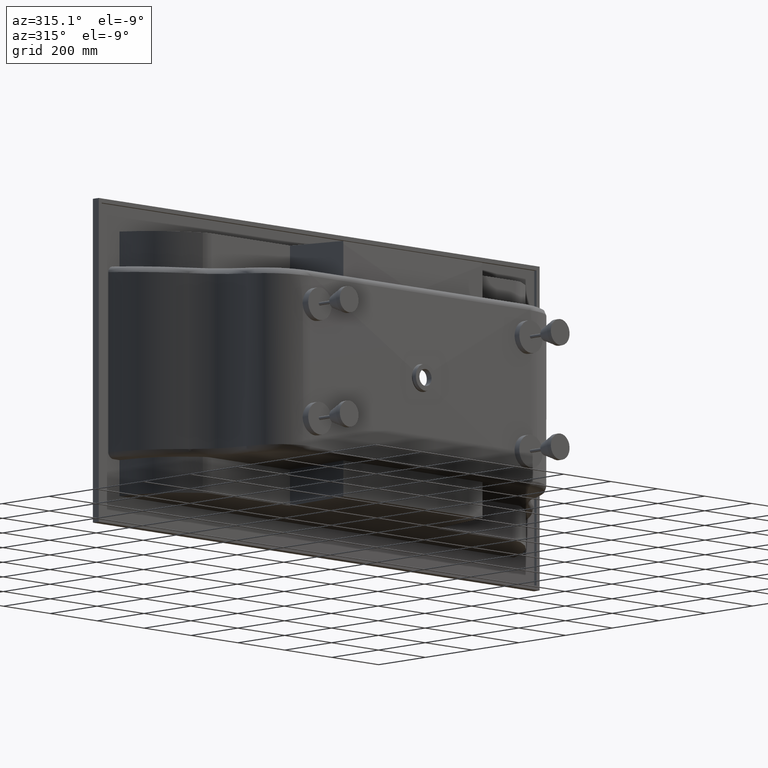
[diagram: clean part render]
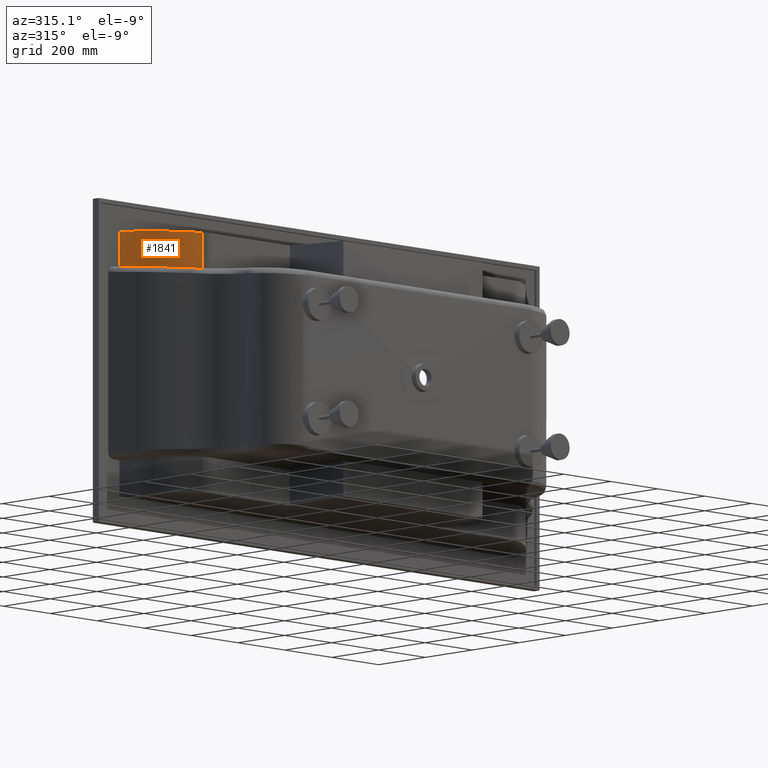
[diagram: same view with one face highlighted and labeled with its STEP entity id]
A machine part, auxiliary view. The second image highlights one B-rep face of the part: STEP entity #1841.
In plain terms, the highlighted cylindrical surface (partial cylindrical patch) has radius 335 mm, axis along (-0, -0, -1).
Its self-contained STEP definition (entity closure, byte-faithful):
#257 = CARTESIAN_POINT ( 'NONE',  ( 98.92710784676805200, 0.0000000000000000000, -200.4981991175117500 ) ) ;
#336 = CARTESIAN_POINT ( 'NONE',  ( 417.3701330040768200, 104.0146130534629900, -104.9999999999993200 ) ) ;
#1060 = EDGE_CURVE ( 'NONE', #6415, #8993, #8400, .T. ) ;
#1186 = FACE_OUTER_BOUND ( 'NONE', #2929, .T. ) ;
#1579 = ORIENTED_EDGE ( 'NONE', *, *, #5838, .F. ) ;
#1794 = AXIS2_PLACEMENT_3D ( 'NONE', #336, #4651, #4684 ) ;
#1841 = ADVANCED_FACE ( 'NONE', ( #1186 ), #4777, .T. ) ;
#2075 = DIRECTION ( 'NONE',  ( -0.0000000000000000000, -0.0000000000000000000, -1.000000000000000000 ) ) ;
#2929 = EDGE_LOOP ( 'NONE', ( #1579, #6397, #7920, #5440 ) ) ;
#3269 = CARTESIAN_POINT ( 'NONE',  ( 261.5496198996332900, -192.5405549943522500, -207.0029475970506800 ) ) ;
#3309 = EDGE_CURVE ( 'NONE', #5510, #8993, #5917, .T. ) ;
#3357 = EDGE_CURVE ( 'NONE', #7368, #6415, #5702, .T. ) ;
#4049 = CARTESIAN_POINT ( 'NONE',  ( 183.3525337181209000, -151.4530562591724300, -95.61485642356488800 ) ) ;
#4208 = CARTESIAN_POINT ( 'NONE',  ( 98.92710784676805200, 0.0000000000000000000, -90.49819911751174600 ) ) ;
#4583 = CARTESIAN_POINT ( 'NONE',  ( 126.3541788859307800, -83.96858111106169500, -203.3349755063989600 ) ) ;
#4651 = DIRECTION ( 'NONE',  ( -0.0000000000000000000, -0.0000000000000000000, -1.000000000000000000 ) ) ;
#4684 = DIRECTION ( 'NONE',  ( -1.000000000000000000, 0.0000000000000000000, 0.0000000000000000000 ) ) ;
#4777 = CYLINDRICAL_SURFACE ( 'NONE', #1794, 335.0000000000000000 ) ;
#5153 = CARTESIAN_POINT ( 'NONE',  ( 98.92710784676805200, 0.0000000000000000000, -200.4981991175117500 ) ) ;
#5440 = ORIENTED_EDGE ( 'NONE', *, *, #3357, .F. ) ;
#5510 = VERTEX_POINT ( 'NONE', #4208 ) ;
#5702 = LINE ( 'NONE', #7689, #7367 ) ;
#5838 = EDGE_CURVE ( 'NONE', #5510, #7368, #6885, .T. ) ;
#5917 = LINE ( 'NONE', #6954, #6146 ) ;
#6089 = CARTESIAN_POINT ( 'NONE',  ( 126.3541788859307800, -83.96858111106171000, -93.33497550639896200 ) ) ;
#6094 = CARTESIAN_POINT ( 'NONE',  ( 183.3525337181209500, -151.4530562591724300, -205.6148564235648700 ) ) ;
#6146 = VECTOR ( 'NONE', #7660, 1000.000000000000000 ) ;
#6397 = ORIENTED_EDGE ( 'NONE', *, *, #3309, .T. ) ;
#6415 = VERTEX_POINT ( 'NONE', #7593 ) ;
#6885 =( BOUNDED_CURVE ( )  B_SPLINE_CURVE ( 3, ( #8877, #6089, #4049, #8909 ),
 .UNSPECIFIED., .F., .F. ) 
 B_SPLINE_CURVE_WITH_KNOTS ( ( 4, 4 ),
 ( 5.028098900158049400, 5.799397229508670600 ),
 .UNSPECIFIED. ) 
 CURVE ( )  GEOMETRIC_REPRESENTATION_ITEM ( )  RATIONAL_B_SPLINE_CURVE ( ( 1.000000000000000000, 0.9510362917879808800, 0.9510362917879808800, 1.000000000000000000 ) ) 
 REPRESENTATION_ITEM ( '' )  );
#6954 = CARTESIAN_POINT ( 'NONE',  ( 98.92710784676805200, 0.0000000000000000000, -104.9999999999993200 ) ) ;
#7367 = VECTOR ( 'NONE', #2075, 1000.000000000000000 ) ;
#7368 = VERTEX_POINT ( 'NONE', #8716 ) ;
#7593 = CARTESIAN_POINT ( 'NONE',  ( 261.5496198996332900, -192.5405549943522500, -207.0029475970506800 ) ) ;
#7660 = DIRECTION ( 'NONE',  ( -0.0000000000000000000, -0.0000000000000000000, -1.000000000000000000 ) ) ;
#7689 = CARTESIAN_POINT ( 'NONE',  ( 261.5496198996332900, -192.5405549943522500, -104.9999999999993200 ) ) ;
#7920 = ORIENTED_EDGE ( 'NONE', *, *, #1060, .F. ) ;
#8400 =( BOUNDED_CURVE ( )  B_SPLINE_CURVE ( 3, ( #3269, #6094, #4583, #257 ),
 .UNSPECIFIED., .F., .T. ) 
 B_SPLINE_CURVE_WITH_KNOTS ( ( 4, 4 ),
 ( 0.4837880776709159200, 1.255086407021537100 ),
 .UNSPECIFIED. ) 
 CURVE ( )  GEOMETRIC_REPRESENTATION_ITEM ( )  RATIONAL_B_SPLINE_CURVE ( ( 1.000000000000000000, 0.9510362917879811000, 0.9510362917879811000, 1.000000000000000000 ) ) 
 REPRESENTATION_ITEM ( '' )  );
#8716 = CARTESIAN_POINT ( 'NONE',  ( 261.5496198996332900, -192.5405549943522500, -97.00294759705069200 ) ) ;
#8877 = CARTESIAN_POINT ( 'NONE',  ( 98.92710784676805200, 0.0000000000000000000, -90.49819911751174600 ) ) ;
#8909 = CARTESIAN_POINT ( 'NONE',  ( 261.5496198996332900, -192.5405549943522500, -97.00294759705069200 ) ) ;
#8993 = VERTEX_POINT ( 'NONE', #5153 ) ;